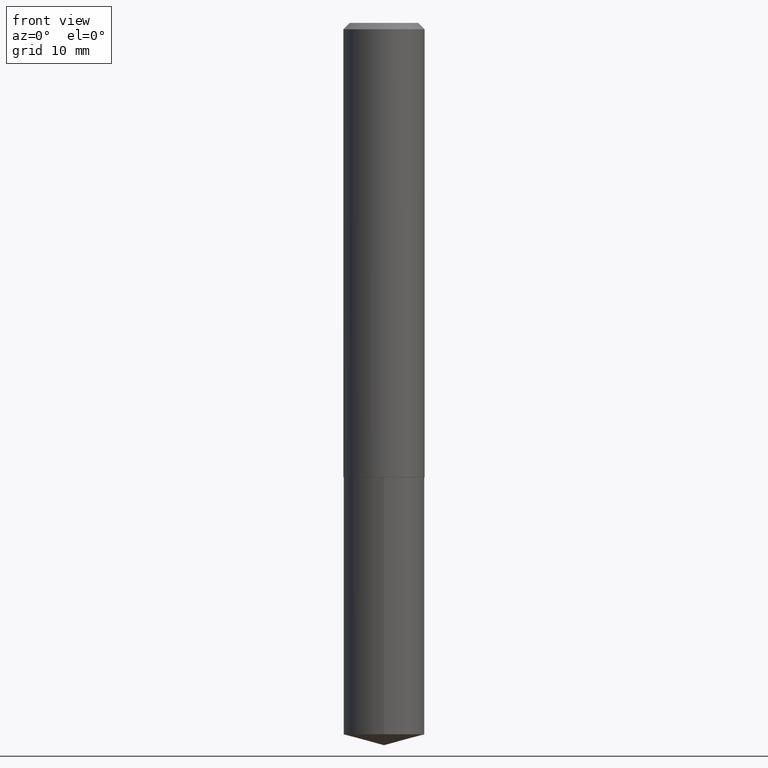
[diagram: clean part render]
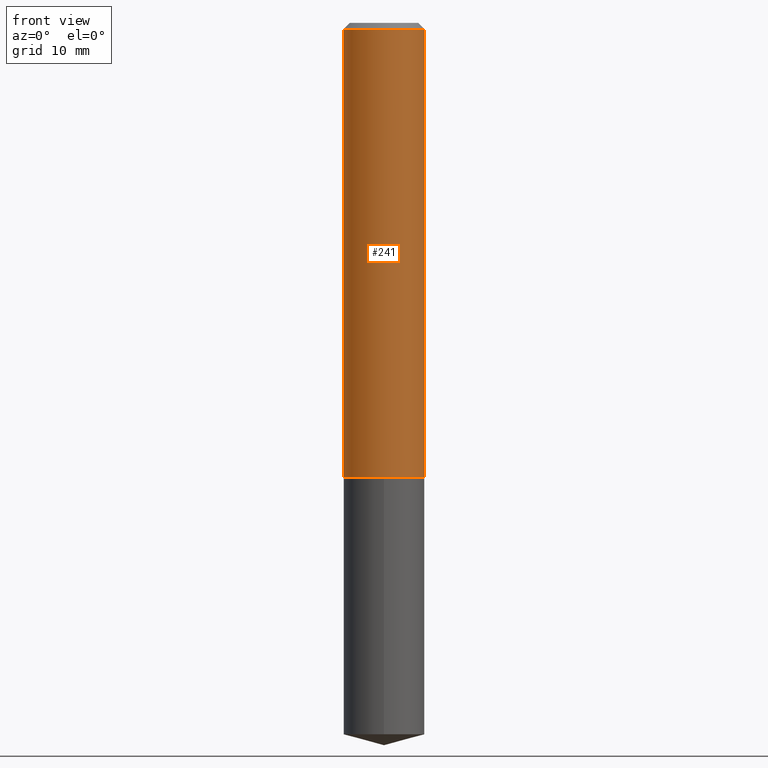
[diagram: same view with one face highlighted and labeled with its STEP entity id]
A machine part, front view. The second image highlights one B-rep face of the part: STEP entity #241.
In plain terms, the highlighted cylindrical surface (partial cylindrical patch) has radius 5 mm, axis along (-0, 0, 1).
Its self-contained STEP definition (entity closure, byte-faithful):
#2 = CARTESIAN_POINT ( 'NONE',  ( 5.390302342593277355E-29, -7.695923167078060833E-15, -2.204199999999999715 ) ) ;
#7 = EDGE_CURVE ( 'NONE', #103, #100, #42, .T. ) ;
#31 = CARTESIAN_POINT ( 'NONE',  ( -0.1968500000000001360, 1.398703375343758182E-15, -9.682923725166790684E-30 ) ) ;
#32 = EDGE_LOOP ( 'NONE', ( #342, #276, #303, #274 ) ) ;
#33 = CARTESIAN_POINT ( 'NONE',  ( -0.1968500000000002748, -6.297219791734301467E-15, -2.204199999999999715 ) ) ;
#42 = LINE ( 'NONE', #166, #151 ) ;
#61 = DIRECTION ( 'NONE',  ( 1.000000000000000000, -6.982962677686265922E-15, 0.000000000000000000 ) ) ;
#66 = AXIS2_PLACEMENT_3D ( 'NONE', #96, #306, #387 ) ;
#87 = VECTOR ( 'NONE', #136, 39.37007874015748143 ) ;
#94 = CYLINDRICAL_SURFACE ( 'NONE', #66, 0.1968500000000001360 ) ;
#96 = CARTESIAN_POINT ( 'NONE',  ( 0.000000000000000000, 0.000000000000000000, 0.000000000000000000 ) ) ;
#100 = VERTEX_POINT ( 'NONE', #201 ) ;
#103 = VERTEX_POINT ( 'NONE', #115 ) ;
#115 = CARTESIAN_POINT ( 'NONE',  ( 0.1968500000000002748, -9.070519370180604019E-15, -2.204199999999999715 ) ) ;
#118 = AXIS2_PLACEMENT_3D ( 'NONE', #2, #209, #259 ) ;
#128 = LINE ( 'NONE', #31, #87 ) ;
#136 = DIRECTION ( 'NONE',  ( -2.445468806185136877E-29, 3.491481338843145188E-15, 1.000000000000000000 ) ) ;
#151 = VECTOR ( 'NONE', #283, 39.37007874015748143 ) ;
#158 = CARTESIAN_POINT ( 'NONE',  ( 7.642090019328607917E-31, -1.091087918388491006E-16, -0.03125000000000022898 ) ) ;
#166 = CARTESIAN_POINT ( 'NONE',  ( 0.1968500000000001360, -1.374596203102542594E-15, 9.598753983154306463E-30 ) ) ;
#180 = FACE_OUTER_BOUND ( 'NONE', #32, .T. ) ;
#182 = CARTESIAN_POINT ( 'NONE',  ( -0.1968500000000000250, -2.503812604114695601E-15, -0.03125000000000022898 ) ) ;
#184 = VERTEX_POINT ( 'NONE', #182 ) ;
#201 = CARTESIAN_POINT ( 'NONE',  ( 0.1968500000000000250, -1.483704994941390709E-15, -0.03125000000000022898 ) ) ;
#209 = DIRECTION ( 'NONE',  ( -2.445468806185136597E-29, 3.491481338843145583E-15, 1.000000000000000000 ) ) ;
#227 = EDGE_CURVE ( 'NONE', #184, #100, #269, .T. ) ;
#241 = ADVANCED_FACE ( 'NONE', ( #180 ), #94, .T. ) ;
#259 = DIRECTION ( 'NONE',  ( 1.000000000000000000, -6.982962677686264344E-15, 0.000000000000000000 ) ) ;
#261 = DIRECTION ( 'NONE',  ( -2.445468806185136597E-29, 3.491481338843145583E-15, 1.000000000000000000 ) ) ;
#269 = CIRCLE ( 'NONE', #325, 0.1968500000000000250 ) ;
#272 = EDGE_CURVE ( 'NONE', #367, #103, #333, .T. ) ;
#274 = ORIENTED_EDGE ( 'NONE', *, *, #227, .F. ) ;
#276 = ORIENTED_EDGE ( 'NONE', *, *, #272, .T. ) ;
#283 = DIRECTION ( 'NONE',  ( -2.445468806185136877E-29, 3.491481338843145188E-15, 1.000000000000000000 ) ) ;
#303 = ORIENTED_EDGE ( 'NONE', *, *, #7, .T. ) ;
#306 = DIRECTION ( 'NONE',  ( -2.445468806185136597E-29, 3.491481338843145583E-15, 1.000000000000000000 ) ) ;
#325 = AXIS2_PLACEMENT_3D ( 'NONE', #158, #261, #61 ) ;
#333 = CIRCLE ( 'NONE', #118, 0.1968500000000002748 ) ;
#342 = ORIENTED_EDGE ( 'NONE', *, *, #343, .F. ) ;
#343 = EDGE_CURVE ( 'NONE', #367, #184, #128, .T. ) ;
#367 = VERTEX_POINT ( 'NONE', #33 ) ;
#387 = DIRECTION ( 'NONE',  ( 1.000000000000000000, -6.982962677686266711E-15, 4.876176775795935793E-29 ) ) ;